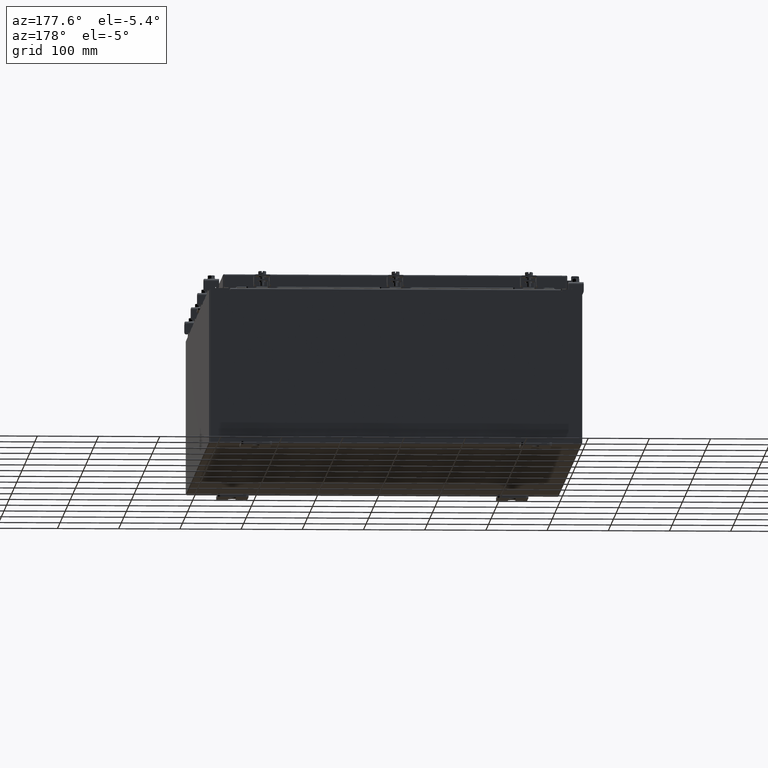
[diagram: clean part render]
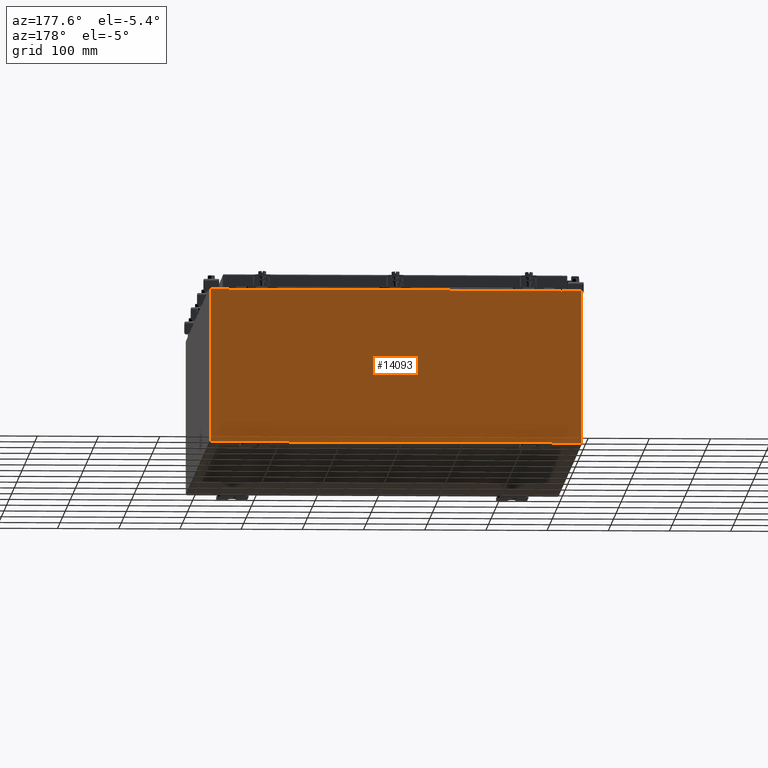
[diagram: same view with one face highlighted and labeled with its STEP entity id]
A machine part, auxiliary view. The second image highlights one B-rep face of the part: STEP entity #14093.
In plain terms, the highlighted planar face has unit normal (0, -1, 0).
Its self-contained STEP definition (entity closure, byte-faithful):
#64 = CARTESIAN_POINT ( 'NONE',  ( 11.92530000000000000, 0.0000000000000000000, 4.925300000000000000 ) ) ;
#238 = CARTESIAN_POINT ( 'NONE',  ( -10.63720000000000400, -0.0000000000000000000, 0.0000000000000000000 ) ) ;
#316 = DIRECTION ( 'NONE',  ( 0.0000000000000000000, -1.000000000000000000, 0.0000000000000000000 ) ) ;
#1016 = EDGE_CURVE ( 'NONE', #3519, #19831, #12470, .T. ) ;
#1091 = CARTESIAN_POINT ( 'NONE',  ( -10.67455000000000200, 0.0000000000000000000, 4.874950000000000100 ) ) ;
#1257 = CARTESIAN_POINT ( 'NONE',  ( 11.92530000000000000, 0.0000000000000000000, -4.925300000000000000 ) ) ;
#1842 = ORIENTED_EDGE ( 'NONE', *, *, #1016, .T. ) ;
#2015 = ORIENTED_EDGE ( 'NONE', *, *, #19193, .F. ) ;
#2035 = CARTESIAN_POINT ( 'NONE',  ( -11.92530000000000000, 0.0000000000000000000, 4.925300000000000000 ) ) ;
#2210 = VECTOR ( 'NONE', #13667, 39.37007874015748100 ) ;
#2348 = CARTESIAN_POINT ( 'NONE',  ( 10.65587500000000200, 0.0000000000000000000, 4.874950000000000100 ) ) ;
#2817 = ORIENTED_EDGE ( 'NONE', *, *, #9787, .F. ) ;
#2843 = VECTOR ( 'NONE', #20759, 39.37007874015748100 ) ;
#3337 = CARTESIAN_POINT ( 'NONE',  ( -11.92530000000000000, 0.0000000000000000000, 4.925300000000000000 ) ) ;
#3384 = CARTESIAN_POINT ( 'NONE',  ( 10.63720000000000400, 0.0000000000000000000, 4.912300000000000100 ) ) ;
#3519 = VERTEX_POINT ( 'NONE', #1257 ) ;
#3920 = EDGE_CURVE ( 'NONE', #14882, #4187, #11854, .T. ) ;
#4187 = VERTEX_POINT ( 'NONE', #3384 ) ;
#4257 = DIRECTION ( 'NONE',  ( -0.0000000000000000000, 1.000000000000000000, -0.0000000000000000000 ) ) ;
#4680 = ORIENTED_EDGE ( 'NONE', *, *, #21883, .T. ) ;
#4711 = VERTEX_POINT ( 'NONE', #4778 ) ;
#4778 = CARTESIAN_POINT ( 'NONE',  ( -10.63720000000000400, -0.0000000000000000000, 4.874950000000000100 ) ) ;
#4897 = ORIENTED_EDGE ( 'NONE', *, *, #14648, .F. ) ;
#5127 = CARTESIAN_POINT ( 'NONE',  ( -11.92530000000000000, 0.0000000000000000000, 4.925300000000000000 ) ) ;
#5531 = VERTEX_POINT ( 'NONE', #20638 ) ;
#5755 = CARTESIAN_POINT ( 'NONE',  ( 10.67455000000000200, 0.0000000000000000000, 4.874950000000000100 ) ) ;
#6339 = CARTESIAN_POINT ( 'NONE',  ( -11.92530000000000000, 0.0000000000000000000, -4.925300000000000000 ) ) ;
#6364 = LINE ( 'NONE', #64, #20180 ) ;
#6455 = EDGE_CURVE ( 'NONE', #8043, #22911, #8711, .T. ) ;
#7040 = EDGE_LOOP ( 'NONE', ( #2817, #2015, #13335, #4680, #7547, #4897, #7311, #11884, #16461, #1842, #9752, #18398 ) ) ;
#7241 = CARTESIAN_POINT ( 'NONE',  ( -10.63720000000000400, -7.171100983368691200E-016, 4.912300000000000100 ) ) ;
#7311 = ORIENTED_EDGE ( 'NONE', *, *, #16463, .F. ) ;
#7489 = CARTESIAN_POINT ( 'NONE',  ( 0.0000000000000000000, 0.0000000000000000000, 0.0000000000000000000 ) ) ;
#7547 = ORIENTED_EDGE ( 'NONE', *, *, #3920, .F. ) ;
#7648 = LINE ( 'NONE', #18955, #2843 ) ;
#7699 = EDGE_CURVE ( 'NONE', #19831, #7710, #23335, .T. ) ;
#7710 = VERTEX_POINT ( 'NONE', #2035 ) ;
#8043 = VERTEX_POINT ( 'NONE', #11917 ) ;
#8128 = VECTOR ( 'NONE', #14185, 39.37007874015748100 ) ;
#8352 = DIRECTION ( 'NONE',  ( -0.0000000000000000000, 1.000000000000000000, -0.0000000000000000000 ) ) ;
#8436 = CARTESIAN_POINT ( 'NONE',  ( 10.63720000000000400, 0.0000000000000000000, 4.874950000000000100 ) ) ;
#8711 = LINE ( 'NONE', #3337, #8128 ) ;
#8884 = VECTOR ( 'NONE', #23193, 39.37007874015748100 ) ;
#9063 = DIRECTION ( 'NONE',  ( 1.000000000000000000, 0.0000000000000000000, 0.0000000000000000000 ) ) ;
#9310 = PLANE ( 'NONE',  #21168 ) ;
#9752 = ORIENTED_EDGE ( 'NONE', *, *, #7699, .T. ) ;
#9787 = EDGE_CURVE ( 'NONE', #14823, #5531, #20729, .T. ) ;
#10016 = CARTESIAN_POINT ( 'NONE',  ( 10.63720000000000400, 0.0000000000000000000, 0.0000000000000000000 ) ) ;
#10075 = DIRECTION ( 'NONE',  ( 0.0000000000000000000, 0.0000000000000000000, 1.000000000000000000 ) ) ;
#11165 = VECTOR ( 'NONE', #10075, 39.37007874015748100 ) ;
#11468 = LINE ( 'NONE', #238, #16273 ) ;
#11854 = LINE ( 'NONE', #10016, #2210 ) ;
#11884 = ORIENTED_EDGE ( 'NONE', *, *, #6455, .T. ) ;
#11917 = CARTESIAN_POINT ( 'NONE',  ( 10.67455000000000200, 0.0000000000000000000, 4.925300000000000000 ) ) ;
#12157 = AXIS2_PLACEMENT_3D ( 'NONE', #2348, #4257, #16880 ) ;
#12470 = LINE ( 'NONE', #6339, #18342 ) ;
#12897 = DIRECTION ( 'NONE',  ( 0.0000000000000000000, 0.0000000000000000000, -1.000000000000000000 ) ) ;
#12967 = DIRECTION ( 'NONE',  ( 0.0000000000000000000, -0.0000000000000000000, -1.000000000000000000 ) ) ;
#13188 = VECTOR ( 'NONE', #19957, 39.37007874015748100 ) ;
#13335 = ORIENTED_EDGE ( 'NONE', *, *, #14066, .F. ) ;
#13667 = DIRECTION ( 'NONE',  ( 0.0000000000000000000, 0.0000000000000000000, 1.000000000000000000 ) ) ;
#13707 = LINE ( 'NONE', #5127, #8884 ) ;
#14066 = EDGE_CURVE ( 'NONE', #23365, #4711, #11468, .T. ) ;
#14093 = ADVANCED_FACE ( 'NONE', ( #15722 ), #9310, .F. ) ;
#14185 = DIRECTION ( 'NONE',  ( 1.000000000000000000, 0.0000000000000000000, 0.0000000000000000000 ) ) ;
#14536 = DIRECTION ( 'NONE',  ( 0.0000000000000000000, 0.0000000000000000000, -1.000000000000000000 ) ) ;
#14648 = EDGE_CURVE ( 'NONE', #16966, #14882, #15120, .T. ) ;
#14823 = VERTEX_POINT ( 'NONE', #1091 ) ;
#14882 = VERTEX_POINT ( 'NONE', #8436 ) ;
#14975 = EDGE_CURVE ( 'NONE', #7710, #5531, #13707, .T. ) ;
#15120 = CIRCLE ( 'NONE', #12157, 0.01867499999999949400 ) ;
#15374 = CARTESIAN_POINT ( 'NONE',  ( -11.92530000000000000, 0.0000000000000000000, -4.925300000000000000 ) ) ;
#15722 = FACE_OUTER_BOUND ( 'NONE', #7040, .T. ) ;
#16273 = VECTOR ( 'NONE', #12897, 39.37007874015748100 ) ;
#16461 = ORIENTED_EDGE ( 'NONE', *, *, #21892, .T. ) ;
#16463 = EDGE_CURVE ( 'NONE', #8043, #16966, #7648, .T. ) ;
#16880 = DIRECTION ( 'NONE',  ( 0.0000000000000000000, 0.0000000000000000000, -1.000000000000000000 ) ) ;
#16966 = VERTEX_POINT ( 'NONE', #5755 ) ;
#17097 = VECTOR ( 'NONE', #9063, 39.37007874015748100 ) ;
#17711 = CIRCLE ( 'NONE', #17919, 0.01867499999999949400 ) ;
#17919 = AXIS2_PLACEMENT_3D ( 'NONE', #19164, #8352, #20983 ) ;
#18214 = CARTESIAN_POINT ( 'NONE',  ( -11.92530000000000000, 0.0000000000000000000, 4.925300000000000000 ) ) ;
#18342 = VECTOR ( 'NONE', #18964, 39.37007874015748100 ) ;
#18398 = ORIENTED_EDGE ( 'NONE', *, *, #14975, .T. ) ;
#18773 = CARTESIAN_POINT ( 'NONE',  ( -10.63720000000000400, -7.171100983368691200E-016, 4.912300000000000100 ) ) ;
#18955 = CARTESIAN_POINT ( 'NONE',  ( 10.67454999999979000, -0.0000000000000000000, -4.633366117301795800E-013 ) ) ;
#18964 = DIRECTION ( 'NONE',  ( -1.000000000000000000, -0.0000000000000000000, -0.0000000000000000000 ) ) ;
#19164 = CARTESIAN_POINT ( 'NONE',  ( -10.65587500000000200, 0.0000000000000000000, 4.874950000000000100 ) ) ;
#19193 = EDGE_CURVE ( 'NONE', #4711, #14823, #17711, .T. ) ;
#19831 = VERTEX_POINT ( 'NONE', #15374 ) ;
#19957 = DIRECTION ( 'NONE',  ( -0.0000000000000000000, -0.0000000000000000000, 1.000000000000000000 ) ) ;
#20180 = VECTOR ( 'NONE', #14536, 39.37007874015748100 ) ;
#20638 = CARTESIAN_POINT ( 'NONE',  ( -10.67455000000000200, 0.0000000000000000000, 4.925300000000000000 ) ) ;
#20729 = LINE ( 'NONE', #22667, #11165 ) ;
#20753 = LINE ( 'NONE', #7241, #17097 ) ;
#20759 = DIRECTION ( 'NONE',  ( -4.340572780400004900E-014, 0.0000000000000000000, -1.000000000000000000 ) ) ;
#20983 = DIRECTION ( 'NONE',  ( 0.0000000000000000000, 0.0000000000000000000, -1.000000000000000000 ) ) ;
#21168 = AXIS2_PLACEMENT_3D ( 'NONE', #7489, #316, #12967 ) ;
#21883 = EDGE_CURVE ( 'NONE', #23365, #4187, #20753, .T. ) ;
#21892 = EDGE_CURVE ( 'NONE', #22911, #3519, #6364, .T. ) ;
#22667 = CARTESIAN_POINT ( 'NONE',  ( -10.67455000000000200, -0.0000000000000000000, 0.0000000000000000000 ) ) ;
#22911 = VERTEX_POINT ( 'NONE', #23048 ) ;
#23048 = CARTESIAN_POINT ( 'NONE',  ( 11.92530000000000000, 0.0000000000000000000, 4.925300000000000000 ) ) ;
#23193 = DIRECTION ( 'NONE',  ( 1.000000000000000000, 0.0000000000000000000, 0.0000000000000000000 ) ) ;
#23335 = LINE ( 'NONE', #18214, #13188 ) ;
#23365 = VERTEX_POINT ( 'NONE', #18773 ) ;